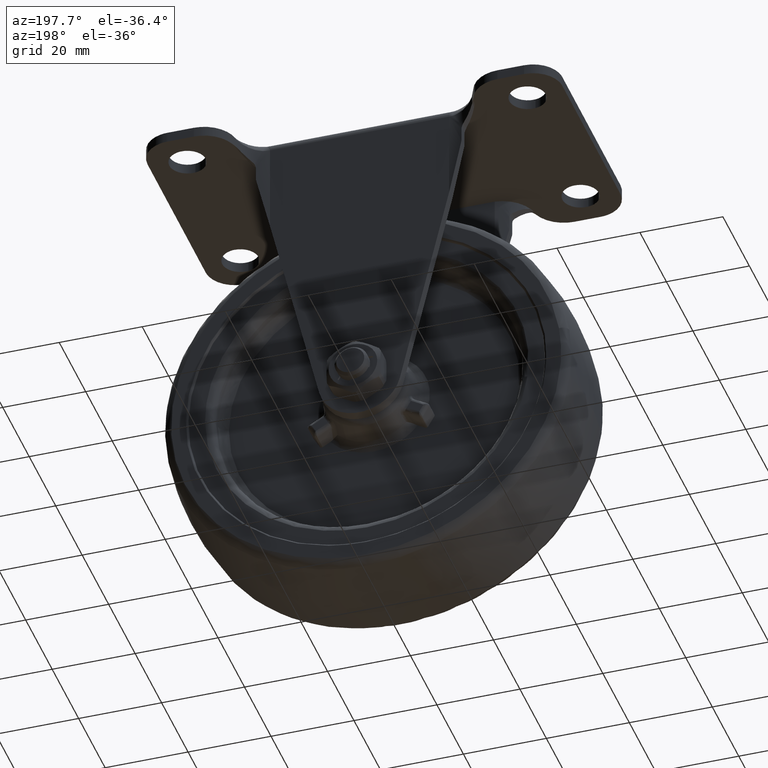
[diagram: clean part render]
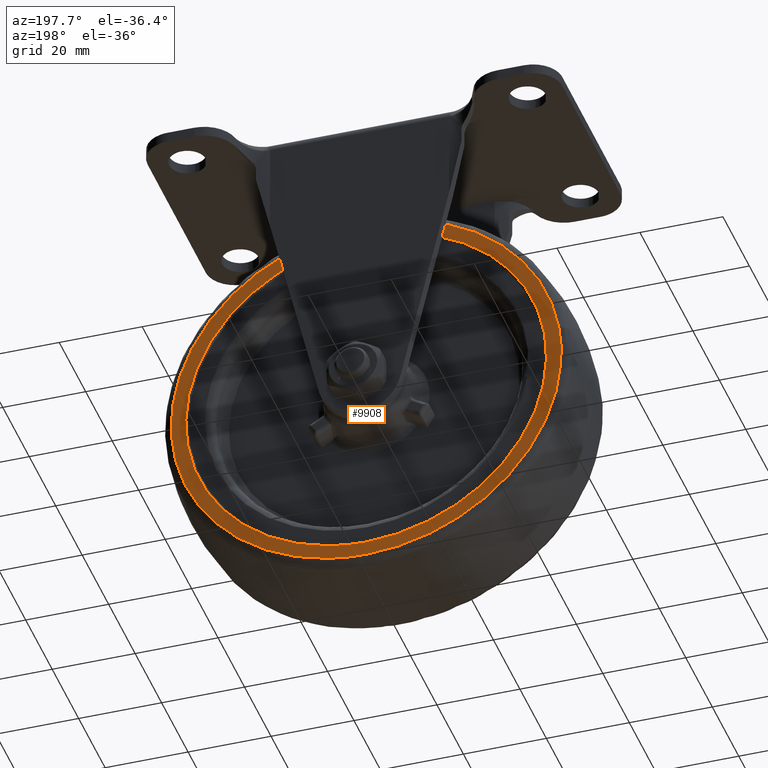
[diagram: same view with one face highlighted and labeled with its STEP entity id]
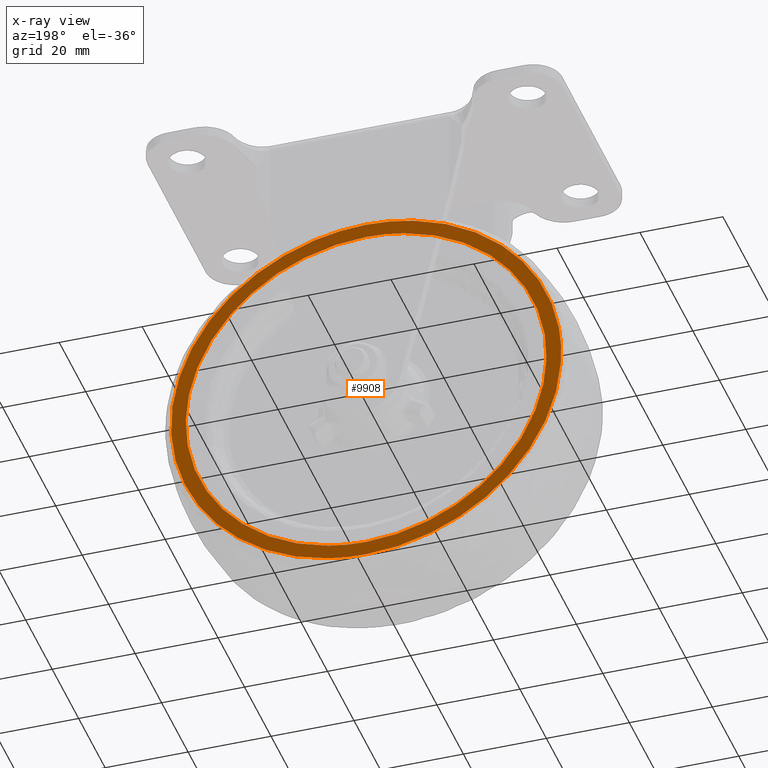
[diagram: x-ray of the same camera — body ghosted, the highlighted face saturated]
A machine part, auxiliary view. The second image highlights one B-rep face of the part: STEP entity #9908.
The next image is the same camera in x-ray: the body ghosted, the highlighted face saturated — about 0% of this face is hidden behind the body in this view.
In plain terms, the highlighted face is a freeform B-spline surface patch.
Its self-contained STEP definition (entity closure, byte-faithful):
#2302=CARTESIAN_POINT('',(-75.486262230719149,13.500000000000000,-71.093159151830434));
#2303=VERTEX_POINT('',#2302);
#2317=CARTESIAN_POINT('',(-32.0,13.500000000000000,-26.500000000000011));
#2318=VERTEX_POINT('',#2317);
#2319=CARTESIAN_POINT('',(-75.486262230719149,13.499999999999998,-71.093159151830434));
#2320=CARTESIAN_POINT('',(-75.499999999999986,13.499999999999998,-70.546665897490271));
#2321=CARTESIAN_POINT('',(-75.500000000000000,13.500000000000000,-70.0));
#2322=CARTESIAN_POINT('',(-75.500000000000014,13.500000000000000,-26.500000000000014));
#2323=CARTESIAN_POINT('',(-32.0,13.500000000000000,-26.500000000000011));
#2331=(BOUNDED_CURVE()B_SPLINE_CURVE(2,(#2319,#2320,#2321,#2322,#2323),.UNSPECIFIED.,.F.,.U.)B_SPLINE_CURVE_WITH_KNOTS((3,2,3),(0.745579891768816,0.750000000000000,1.0),.UNSPECIFIED.)CURVE()GEOMETRIC_REPRESENTATION_ITEM()RATIONAL_B_SPLINE_CURVE((0.989826157679335,0.994821521090659,1.0,0.707106781186547,1.0))REPRESENTATION_ITEM(''));
#2332=EDGE_CURVE('',#2303,#2318,#2331,.T.);
#2334=CARTESIAN_POINT('',(11.486262230719150,13.500000000000000,-68.906840848169537));
#2335=VERTEX_POINT('',#2334);
#2336=CARTESIAN_POINT('',(-32.0,13.500000000000000,-26.500000000000011));
#2337=CARTESIAN_POINT('',(10.420237613617740,13.500000000000002,-26.500000000000021));
#2338=CARTESIAN_POINT('',(11.486262230719140,13.500000000000002,-68.906840848169537));
#2346=(BOUNDED_CURVE()B_SPLINE_CURVE(2,(#2336,#2337,#2338),.UNSPECIFIED.,.F.,.U.)B_SPLINE_CURVE_WITH_KNOTS((3,3),(0.0,0.245579891768816),.UNSPECIFIED.)CURVE()GEOMETRIC_REPRESENTATION_ITEM()RATIONAL_B_SPLINE_CURVE((1.0,0.712285260095889,0.989826157679335))REPRESENTATION_ITEM(''));
#2347=EDGE_CURVE('',#2318,#2335,#2346,.T.);
#2434=CARTESIAN_POINT('',(-32.0,13.500000000000000,-113.500000000000000));
#2435=VERTEX_POINT('',#2434);
#2436=CARTESIAN_POINT('',(11.486262230719147,13.500000000000000,-68.906840848169537));
#2437=CARTESIAN_POINT('',(11.499999999999995,13.499999999999998,-69.453334102509700));
#2438=CARTESIAN_POINT('',(11.500000000000000,13.500000000000000,-70.0));
#2439=CARTESIAN_POINT('',(11.499999999999996,13.500000000000000,-113.500000000000000));
#2440=CARTESIAN_POINT('',(-32.0,13.500000000000000,-113.500000000000000));
#2448=(BOUNDED_CURVE()B_SPLINE_CURVE(2,(#2436,#2437,#2438,#2439,#2440),.UNSPECIFIED.,.F.,.U.)B_SPLINE_CURVE_WITH_KNOTS((3,2,3),(0.245579891768816,0.250000000000000,0.500000000000000),.UNSPECIFIED.)CURVE()GEOMETRIC_REPRESENTATION_ITEM()RATIONAL_B_SPLINE_CURVE((0.989826157679335,0.994821521090659,1.0,0.707106781186547,1.0))REPRESENTATION_ITEM(''));
#2449=EDGE_CURVE('',#2335,#2435,#2448,.T.);
#2451=CARTESIAN_POINT('',(-32.0,13.500000000000000,-113.500000000000000));
#2452=CARTESIAN_POINT('',(-74.420237613617999,13.500000000000000,-113.500000000000000));
#2453=CARTESIAN_POINT('',(-75.486262230719149,13.500000000000004,-71.093159151830434));
#2461=(BOUNDED_CURVE()B_SPLINE_CURVE(2,(#2451,#2452,#2453),.UNSPECIFIED.,.F.,.U.)B_SPLINE_CURVE_WITH_KNOTS((3,3),(0.500000000000000,0.745579891768817),.UNSPECIFIED.)CURVE()GEOMETRIC_REPRESENTATION_ITEM()RATIONAL_B_SPLINE_CURVE((1.0,0.712285260095888,0.989826157679337))REPRESENTATION_ITEM(''));
#2462=EDGE_CURVE('',#2435,#2303,#2461,.T.);
#2497=CARTESIAN_POINT('',(-19.615983066948900,13.500000000000000,-24.639605876213409));
#2498=VERTEX_POINT('',#2497);
#2499=CARTESIAN_POINT('',(-32.0,13.500000000000000,-117.020519245974300));
#2500=VERTEX_POINT('',#2499);
#2501=CARTESIAN_POINT('',(-19.615983066948907,13.500000000000000,-24.639605876213412));
#2502=CARTESIAN_POINT('',(15.020519245974301,13.500000000000004,-34.095851563315982));
#2503=CARTESIAN_POINT('',(15.020519245974301,13.500000000000000,-70.0));
#2504=CARTESIAN_POINT('',(15.020519245974304,13.500000000000000,-117.020519245974310));
#2505=CARTESIAN_POINT('',(-32.0,13.500000000000000,-117.020519245974300));
#2513=(BOUNDED_CURVE()B_SPLINE_CURVE(2,(#2501,#2502,#2503,#2504,#2505),.UNSPECIFIED.,.F.,.U.)B_SPLINE_CURVE_WITH_KNOTS((3,2,3),(0.044901926750989,0.250000000000000,0.500000000000000),.UNSPECIFIED.)CURVE()GEOMETRIC_REPRESENTATION_ITEM()RATIONAL_B_SPLINE_CURVE((0.913685083901828,0.759712660614640,1.0,0.707106781186548,1.0))REPRESENTATION_ITEM(''));
#2514=EDGE_CURVE('',#2498,#2500,#2513,.T.);
#2580=CARTESIAN_POINT('',(-78.486919309799589,13.499999999999570,-62.936314656965124));
#2581=VERTEX_POINT('',#2580);
#2595=CARTESIAN_POINT('',(-32.0,13.500000000000000,-117.020519245974300));
#2596=CARTESIAN_POINT('',(-79.020519245974313,13.500000000000000,-117.020519245974310));
#2597=CARTESIAN_POINT('',(-79.020519245974313,13.500000000000000,-70.0));
#2598=CARTESIAN_POINT('',(-79.020519245974313,13.499999999999998,-66.448002913996447));
#2599=CARTESIAN_POINT('',(-78.486919309799589,13.499999999999565,-62.936314656965138));
#2607=(BOUNDED_CURVE()B_SPLINE_CURVE(2,(#2595,#2596,#2597,#2598,#2599),.UNSPECIFIED.,.F.,.U.)B_SPLINE_CURVE_WITH_KNOTS((3,2,3),(0.500000000000000,0.750000000000000,0.775897584615981),.UNSPECIFIED.)CURVE()GEOMETRIC_REPRESENTATION_ITEM()RATIONAL_B_SPLINE_CURVE((1.0,0.707106781186548,1.0,0.969659092329327,0.945604234448469))REPRESENTATION_ITEM(''));
#2608=EDGE_CURVE('',#2500,#2581,#2607,.T.);
#2636=CARTESIAN_POINT('',(-32.0,13.500000000000000,-22.979480754025712));
#2637=VERTEX_POINT('',#2636);
#2638=CARTESIAN_POINT('',(-32.0,13.500000000000000,-22.979480754025712));
#2639=CARTESIAN_POINT('',(-25.696718453139720,13.499999999999996,-22.979480754025701));
#2640=CARTESIAN_POINT('',(-19.615983066948907,13.500000000000002,-24.639605876213416));
#2648=(BOUNDED_CURVE()B_SPLINE_CURVE(2,(#2638,#2639,#2640),.UNSPECIFIED.,.F.,.U.)B_SPLINE_CURVE_WITH_KNOTS((3,3),(0.0,0.044901926750989),.UNSPECIFIED.)CURVE()GEOMETRIC_REPRESENTATION_ITEM()RATIONAL_B_SPLINE_CURVE((1.0,0.947394120571908,0.913685083901828))REPRESENTATION_ITEM(''));
#2649=EDGE_CURVE('',#2637,#2498,#2648,.T.);
#2651=CARTESIAN_POINT('',(-78.486919309799589,13.499999999999568,-62.936314656965124));
#2652=CARTESIAN_POINT('',(-72.415479217998950,13.500000000000000,-22.979480754025701));
#2653=CARTESIAN_POINT('',(-32.0,13.500000000000000,-22.979480754025712));
#2661=(BOUNDED_CURVE()B_SPLINE_CURVE(2,(#2651,#2652,#2653),.UNSPECIFIED.,.F.,.U.)B_SPLINE_CURVE_WITH_KNOTS((3,3),(0.775897584615981,1.0),.UNSPECIFIED.)CURVE()GEOMETRIC_REPRESENTATION_ITEM()RATIONAL_B_SPLINE_CURVE((0.945604234448469,0.737447688857221,1.0))REPRESENTATION_ITEM(''));
#2662=EDGE_CURVE('',#2581,#2637,#2661,.T.);
#9891=CARTESIAN_POINT('',(-83.704958326963961,13.500000000000000,-18.282131399603301));
#9892=CARTESIAN_POINT('',(-83.704958326963961,13.500000000000000,-121.717864396434710));
#9893=CARTESIAN_POINT('',(19.682771867614449,13.500000000000000,-18.282131399603301));
#9894=CARTESIAN_POINT('',(19.682771867614449,13.500000000000000,-121.717864396434710));
#9895=B_SPLINE_SURFACE_WITH_KNOTS('',1,1,((#9891,#9893),(#9892,#9894)),.UNSPECIFIED.,.F.,.F.,.U.,(2,2),(2,2),(0.0,103.435732996831400),(0.0,103.387730194578400),.UNSPECIFIED.);
#9896=ORIENTED_EDGE('',*,*,#2649,.T.);
#9897=ORIENTED_EDGE('',*,*,#2514,.T.);
#9898=ORIENTED_EDGE('',*,*,#2608,.T.);
#9899=ORIENTED_EDGE('',*,*,#2662,.T.);
#9900=EDGE_LOOP('',(#9896,#9897,#9898,#9899));
#9901=FACE_OUTER_BOUND('',#9900,.T.);
#9902=ORIENTED_EDGE('',*,*,#2347,.F.);
#9903=ORIENTED_EDGE('',*,*,#2332,.F.);
#9904=ORIENTED_EDGE('',*,*,#2462,.F.);
#9905=ORIENTED_EDGE('',*,*,#2449,.F.);
#9906=EDGE_LOOP('',(#9902,#9903,#9904,#9905));
#9907=FACE_BOUND('',#9906,.T.);
#9908=ADVANCED_FACE('',(#9901,#9907),#9895,.F.);